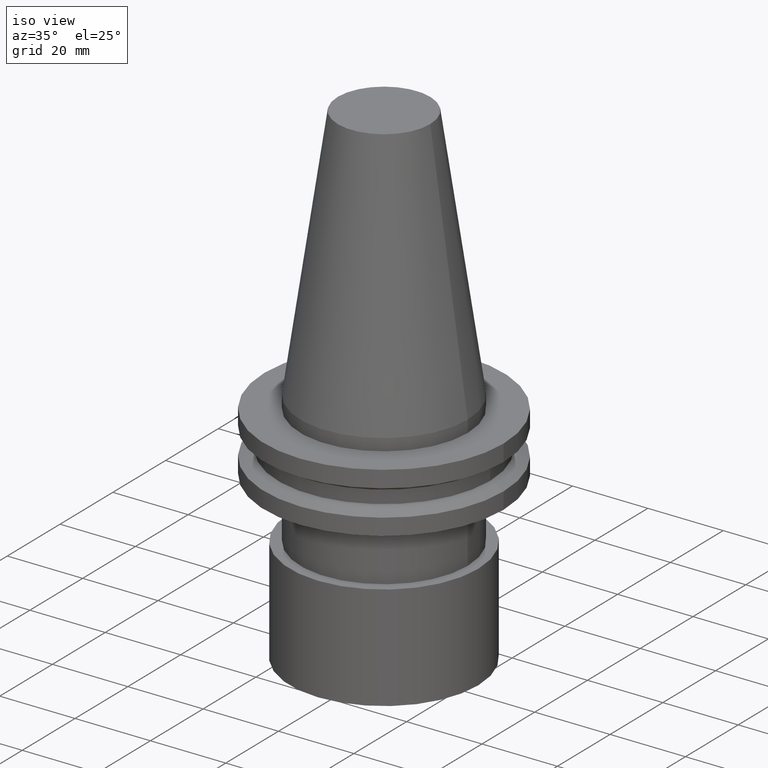
[diagram: clean part render]
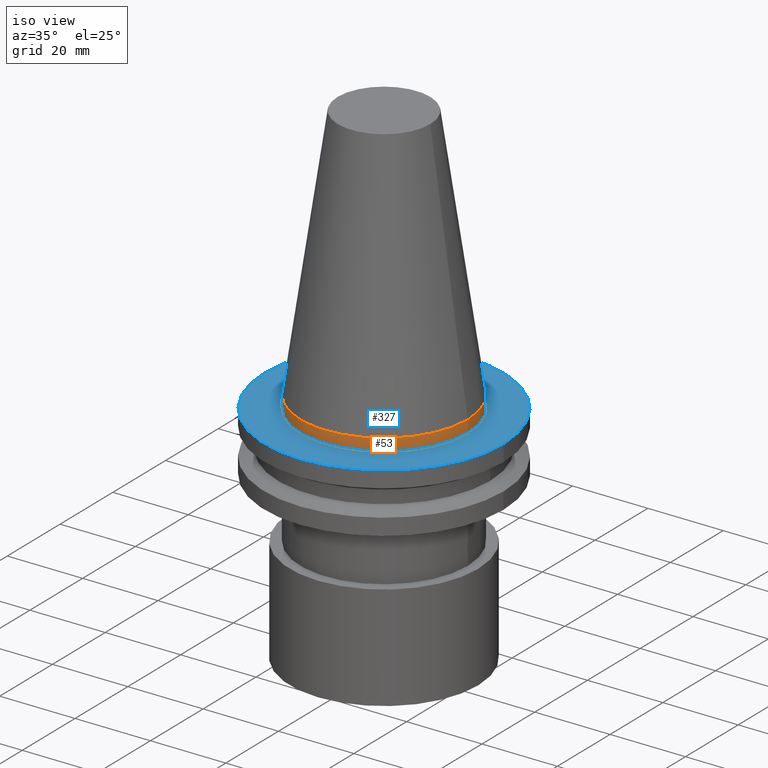
[diagram: same view with the hole feature highlighted: cylindrical wall and planar end face, labeled with their STEP entity ids]
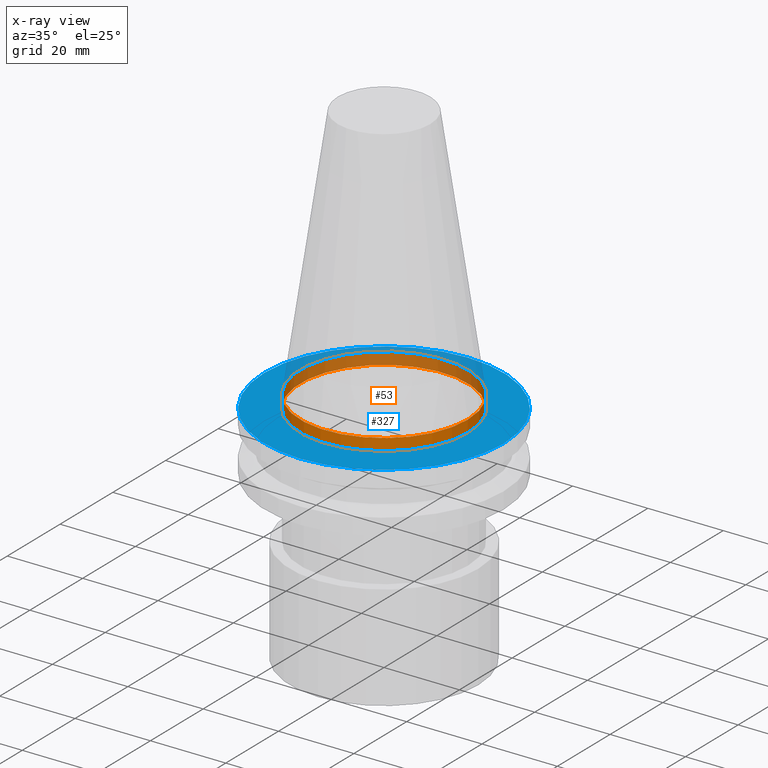
[diagram: x-ray of the same camera — body ghosted, the hole faces saturated]
A machine part, iso view. The highlighted faces form one hole feature of diameter 44.45 mm: the cylindrical wall (entity #53, orange) and its adjacent planar end face (entity #327, blue) — they share a circular edge in the B-rep.
The next image is the same camera in x-ray (body ghosted, the hole faces saturated) — the bore reads through the body.
Wall:
#12 = CARTESIAN_POINT ( 'NONE',  ( 22.22500000000000142, 0.000000000000000000, -3.174999999999997158 ) ) ;
#13 = EDGE_CURVE ( 'NONE', #168, #168, #159, .T. ) ;
#24 = CYLINDRICAL_SURFACE ( 'NONE', #382, 22.22500000000000142 ) ;
#53 = ADVANCED_FACE ( 'NONE', ( #300, #61 ), #24, .T. ) ;
#56 = CARTESIAN_POINT ( 'NONE',  ( 0.000000000000000000, 0.000000000000000000, -3.174999999999997158 ) ) ;
#60 = DIRECTION ( 'NONE',  ( -0.000000000000000000, -0.000000000000000000, 1.000000000000000000 ) ) ;
#61 = FACE_OUTER_BOUND ( 'NONE', #271, .T. ) ;
#151 = CARTESIAN_POINT ( 'NONE',  ( 22.22500000000000142, 0.000000000000000000, 0.000000000000000000 ) ) ;
#159 = CIRCLE ( 'NONE', #190, 22.22500000000000142 ) ;
#165 = DIRECTION ( 'NONE',  ( -0.000000000000000000, -0.000000000000000000, 1.000000000000000000 ) ) ;
#168 = VERTEX_POINT ( 'NONE', #12 ) ;
#190 = AXIS2_PLACEMENT_3D ( 'NONE', #56, #60, #306 ) ;
#207 = ORIENTED_EDGE ( 'NONE', *, *, #371, .F. ) ;
#223 = CARTESIAN_POINT ( 'NONE',  ( 0.000000000000000000, 0.000000000000000000, 0.000000000000000000 ) ) ;
#225 = DIRECTION ( 'NONE',  ( 1.000000000000000000, 0.000000000000000000, 0.000000000000000000 ) ) ;
#233 = VERTEX_POINT ( 'NONE', #151 ) ;
#237 = ORIENTED_EDGE ( 'NONE', *, *, #13, .T. ) ;
#241 = EDGE_LOOP ( 'NONE', ( #207 ) ) ;
#271 = EDGE_LOOP ( 'NONE', ( #237 ) ) ;
#296 = CARTESIAN_POINT ( 'NONE',  ( 0.000000000000000000, 0.000000000000000000, 68.25000000000000000 ) ) ;
#300 = FACE_OUTER_BOUND ( 'NONE', #241, .T. ) ;
#306 = DIRECTION ( 'NONE',  ( 1.000000000000000000, 0.000000000000000000, 0.000000000000000000 ) ) ;
#308 = CIRCLE ( 'NONE', #386, 22.22500000000000142 ) ;
#324 = DIRECTION ( 'NONE',  ( 1.000000000000000000, 0.000000000000000000, 0.000000000000000000 ) ) ;
#356 = DIRECTION ( 'NONE',  ( -0.000000000000000000, -0.000000000000000000, 1.000000000000000000 ) ) ;
#371 = EDGE_CURVE ( 'NONE', #233, #233, #308, .T. ) ;
#382 = AXIS2_PLACEMENT_3D ( 'NONE', #296, #356, #324 ) ;
#386 = AXIS2_PLACEMENT_3D ( 'NONE', #223, #165, #225 ) ;
End face:
#12 = CARTESIAN_POINT ( 'NONE',  ( 22.22500000000000142, 0.000000000000000000, -3.174999999999997158 ) ) ;
#13 = EDGE_CURVE ( 'NONE', #168, #168, #159, .T. ) ;
#15 = DIRECTION ( 'NONE',  ( 0.000000000000000000, 0.000000000000000000, -1.000000000000000000 ) ) ;
#49 = ORIENTED_EDGE ( 'NONE', *, *, #148, .T. ) ;
#56 = CARTESIAN_POINT ( 'NONE',  ( 0.000000000000000000, 0.000000000000000000, -3.174999999999997158 ) ) ;
#60 = DIRECTION ( 'NONE',  ( -0.000000000000000000, -0.000000000000000000, 1.000000000000000000 ) ) ;
#66 = AXIS2_PLACEMENT_3D ( 'NONE', #167, #15, #322 ) ;
#69 = PLANE ( 'NONE',  #66 ) ;
#107 = ORIENTED_EDGE ( 'NONE', *, *, #13, .F. ) ;
#148 = EDGE_CURVE ( 'NONE', #196, #196, #349, .T. ) ;
#157 = DIRECTION ( 'NONE',  ( -0.000000000000000000, -0.000000000000000000, 1.000000000000000000 ) ) ;
#159 = CIRCLE ( 'NONE', #190, 22.22500000000000142 ) ;
#167 = CARTESIAN_POINT ( 'NONE',  ( 0.000000000000000000, 31.75000000000000000, -3.174999999999999378 ) ) ;
#168 = VERTEX_POINT ( 'NONE', #12 ) ;
#190 = AXIS2_PLACEMENT_3D ( 'NONE', #56, #60, #306 ) ;
#194 = FACE_BOUND ( 'NONE', #365, .T. ) ;
#196 = VERTEX_POINT ( 'NONE', #323 ) ;
#295 = FACE_OUTER_BOUND ( 'NONE', #362, .T. ) ;
#306 = DIRECTION ( 'NONE',  ( 1.000000000000000000, 0.000000000000000000, 0.000000000000000000 ) ) ;
#310 = CARTESIAN_POINT ( 'NONE',  ( 0.000000000000000000, 0.000000000000000000, -3.174999999999997158 ) ) ;
#322 = DIRECTION ( 'NONE',  ( -1.000000000000000000, 0.000000000000000000, -0.000000000000000000 ) ) ;
#323 = CARTESIAN_POINT ( 'NONE',  ( 31.75000000000000000, 0.000000000000000000, -3.174999999999997158 ) ) ;
#327 = ADVANCED_FACE ( 'NONE', ( #194, #295 ), #69, .F. ) ;
#349 = CIRCLE ( 'NONE', #360, 31.75000000000000000 ) ;
#360 = AXIS2_PLACEMENT_3D ( 'NONE', #310, #157, #372 ) ;
#362 = EDGE_LOOP ( 'NONE', ( #49 ) ) ;
#365 = EDGE_LOOP ( 'NONE', ( #107 ) ) ;
#372 = DIRECTION ( 'NONE',  ( 1.000000000000000000, 0.000000000000000000, 0.000000000000000000 ) ) ;